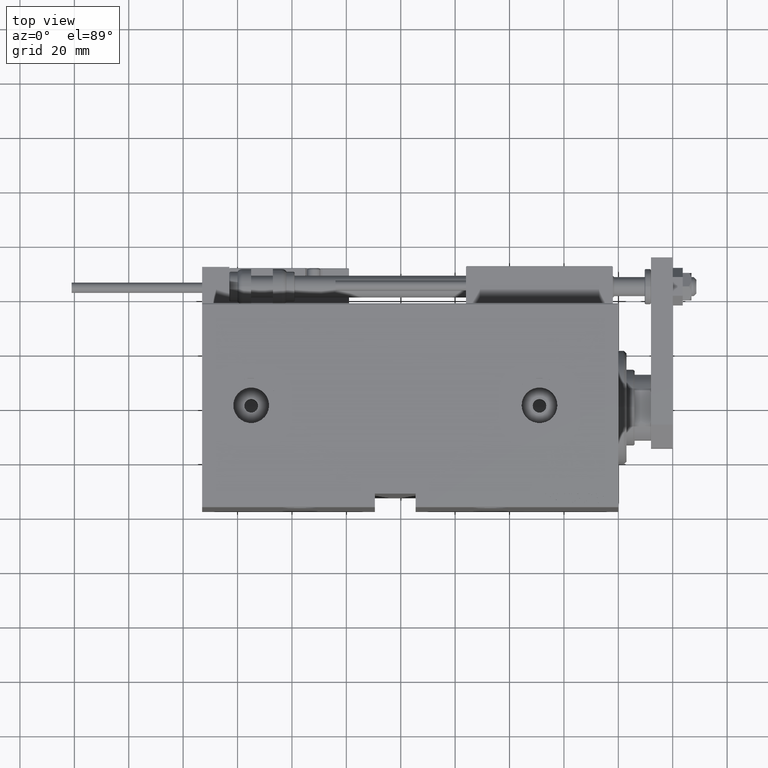
[diagram: clean part render]
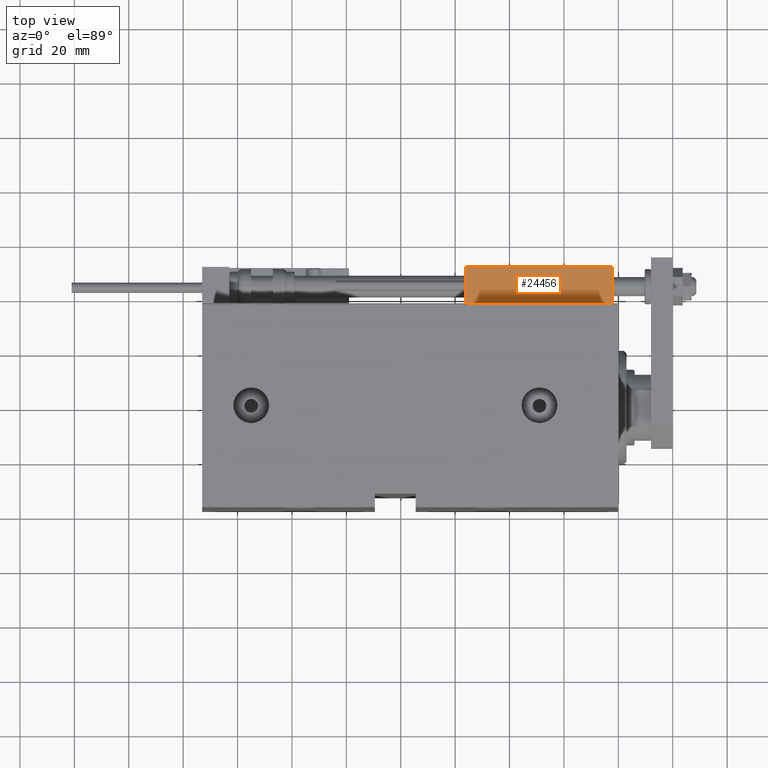
[diagram: same view with one face highlighted and labeled with its STEP entity id]
A machine part, top view. The second image highlights one B-rep face of the part: STEP entity #24456.
In plain terms, the highlighted planar face has unit normal (-0, -0, -1).
Its self-contained STEP definition (entity closure, byte-faithful):
#1993 = CARTESIAN_POINT ( 'NONE',  ( -26.99999999999993605, 20.00000000000002132, 0.000000000000000000 ) ) ;
#2874 = DIRECTION ( 'NONE',  ( -6.424901762877063495E-17, -1.000000000000000000, 0.000000000000000000 ) ) ;
#3693 = LINE ( 'NONE', #26794, #49859 ) ;
#5208 = EDGE_CURVE ( 'NONE', #27869, #35952, #18635, .T. ) ;
#10988 = VERTEX_POINT ( 'NONE', #1993 ) ;
#11690 = CARTESIAN_POINT ( 'NONE',  ( 27.00000000000006395, 20.00000000000001776, 14.00000000000000000 ) ) ;
#12046 = ORIENTED_EDGE ( 'NONE', *, *, #5208, .T. ) ;
#13788 = EDGE_CURVE ( 'NONE', #35952, #17955, #3693, .T. ) ;
#15648 = DIRECTION ( 'NONE',  ( -0.000000000000000000, -0.000000000000000000, -1.000000000000000000 ) ) ;
#16798 = CARTESIAN_POINT ( 'NONE',  ( 27.00000000000006395, 20.00000000000001776, 13.70000000000000107 ) ) ;
#17461 = LINE ( 'NONE', #48406, #48952 ) ;
#17955 = VERTEX_POINT ( 'NONE', #35721 ) ;
#18635 = LINE ( 'NONE', #47210, #43672 ) ;
#19173 = DIRECTION ( 'NONE',  ( -1.000000000000000000, 6.424901762877062263E-17, 0.000000000000000000 ) ) ;
#21197 = EDGE_CURVE ( 'NONE', #17955, #10988, #35531, .T. ) ;
#22601 = PLANE ( 'NONE',  #24369 ) ;
#23302 = DIRECTION ( 'NONE',  ( 1.000000000000000000, -6.424901762877063495E-17, -0.000000000000000000 ) ) ;
#24369 = AXIS2_PLACEMENT_3D ( 'NONE', #11690, #2874, #35049 ) ;
#24456 = ADVANCED_FACE ( 'NONE', ( #46253 ), #22601, .F. ) ;
#25064 = VECTOR ( 'NONE', #19173, 1000.000000000000000 ) ;
#26794 = CARTESIAN_POINT ( 'NONE',  ( 27.00000000000006395, 20.00000000000001776, 14.00000000000000000 ) ) ;
#27726 = CARTESIAN_POINT ( 'NONE',  ( 27.00000000000006395, 20.00000000000001776, 0.000000000000000000 ) ) ;
#27869 = VERTEX_POINT ( 'NONE', #36594 ) ;
#32526 = DIRECTION ( 'NONE',  ( -0.000000000000000000, -0.000000000000000000, -1.000000000000000000 ) ) ;
#35049 = DIRECTION ( 'NONE',  ( 1.000000000000000000, -6.424901762877063495E-17, 0.000000000000000000 ) ) ;
#35531 = LINE ( 'NONE', #27726, #25064 ) ;
#35721 = CARTESIAN_POINT ( 'NONE',  ( 27.00000000000006395, 20.00000000000001776, 0.000000000000000000 ) ) ;
#35952 = VERTEX_POINT ( 'NONE', #16798 ) ;
#36594 = CARTESIAN_POINT ( 'NONE',  ( -26.99999999999993605, 20.00000000000002132, 13.70000000000000107 ) ) ;
#41881 = EDGE_LOOP ( 'NONE', ( #43148, #12046, #48536, #45362 ) ) ;
#43148 = ORIENTED_EDGE ( 'NONE', *, *, #43155, .F. ) ;
#43155 = EDGE_CURVE ( 'NONE', #27869, #10988, #17461, .T. ) ;
#43672 = VECTOR ( 'NONE', #23302, 1000.000000000000000 ) ;
#45362 = ORIENTED_EDGE ( 'NONE', *, *, #21197, .T. ) ;
#46253 = FACE_OUTER_BOUND ( 'NONE', #41881, .T. ) ;
#47210 = CARTESIAN_POINT ( 'NONE',  ( 27.00000000000006395, 20.00000000000001776, 13.70000000000000107 ) ) ;
#48406 = CARTESIAN_POINT ( 'NONE',  ( -26.99999999999993605, 20.00000000000002132, 14.00000000000000000 ) ) ;
#48536 = ORIENTED_EDGE ( 'NONE', *, *, #13788, .T. ) ;
#48952 = VECTOR ( 'NONE', #32526, 1000.000000000000000 ) ;
#49859 = VECTOR ( 'NONE', #15648, 1000.000000000000000 ) ;